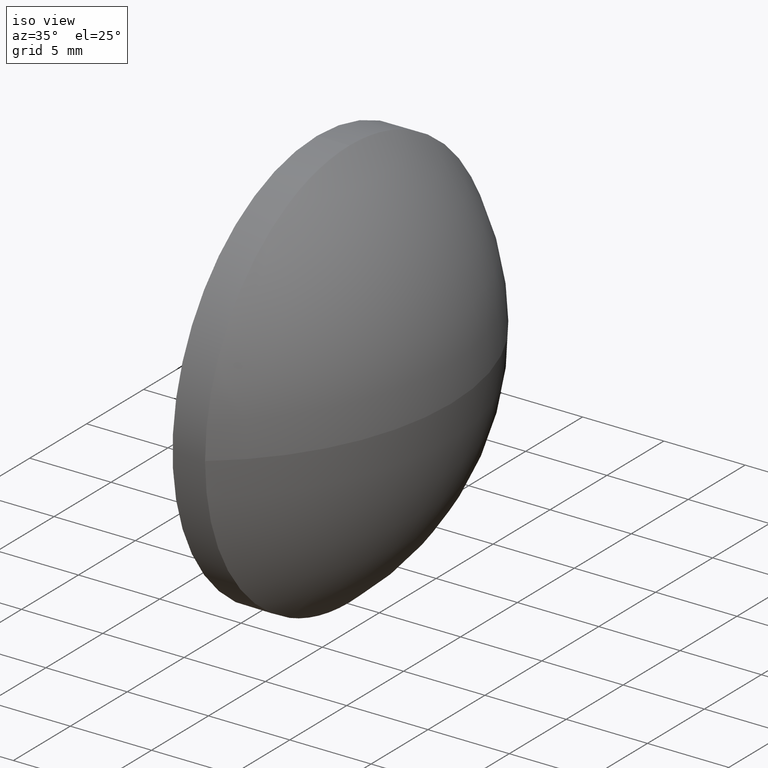
[diagram: clean part render]
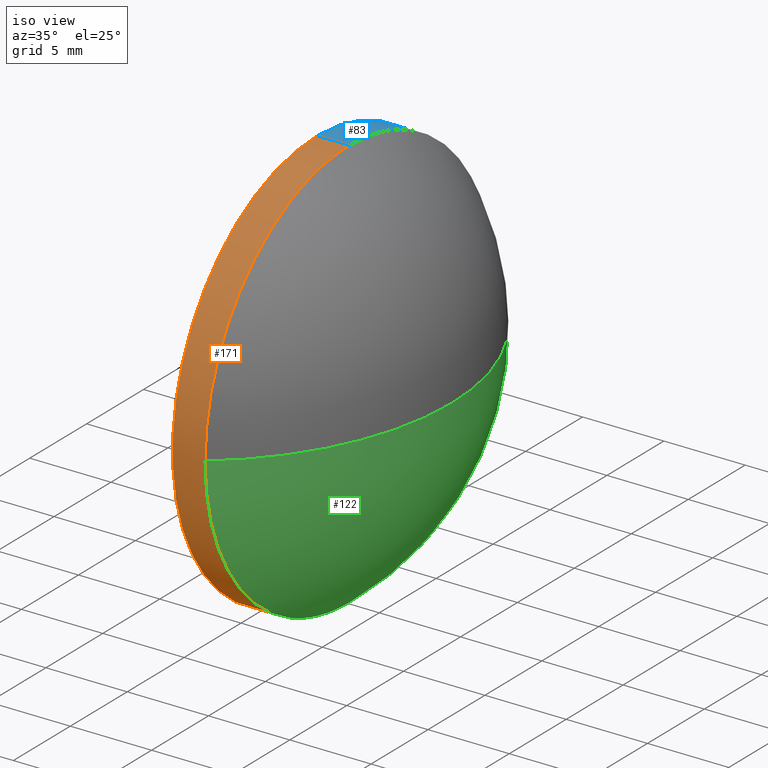
[diagram: same view with three faces highlighted in distinct colors, each labeled with its STEP entity id]
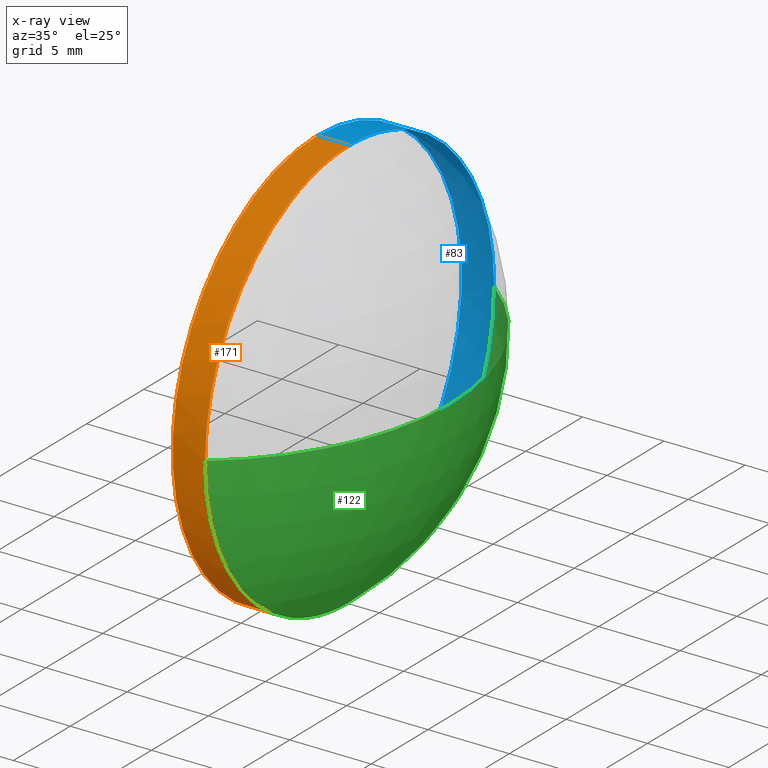
[diagram: x-ray of the same camera — body ghosted, the three highlighted faces saturated]
A machine part, iso view with three faces highlighted in distinct colors.
The next image is the same camera in x-ray (body ghosted, the three faces saturated) — at least one of them is partly hidden behind the body in this view.
Their STEP definitions:

[orange] entity #171 — the highlighted cylindrical surface (partial cylindrical patch) has radius 12.7 mm, axis along (-1, -0, -0).
#5 = CARTESIAN_POINT ( 'NONE',  ( 528.7403345451293700, 109.1985540701067800, 0.0000000000000000000 ) ) ;
#7 = CARTESIAN_POINT ( 'NONE',  ( 526.7403345451293700, 109.1985540701067800, -12.70000000000000300 ) ) ;
#10 = EDGE_CURVE ( 'NONE', #137, #184, #133, .T. ) ;
#11 = DIRECTION ( 'NONE',  ( 0.0000000000000000000, 0.0000000000000000000, 1.000000000000000000 ) ) ;
#23 = CARTESIAN_POINT ( 'NONE',  ( 521.0356609976745400, 109.1985540701067800, -12.70000000000000300 ) ) ;
#34 = AXIS2_PLACEMENT_3D ( 'NONE', #5, #55, #151 ) ;
#35 = CARTESIAN_POINT ( 'NONE',  ( 528.7403345451293700, 96.49855407010676300, -1.555301434917136700E-015 ) ) ;
#40 = ORIENTED_EDGE ( 'NONE', *, *, #146, .F. ) ;
#41 = CYLINDRICAL_SURFACE ( 'NONE', #100, 12.70000000000000300 ) ;
#44 = CARTESIAN_POINT ( 'NONE',  ( 528.7403345451293700, 109.1985540701067800, -12.70000000000000300 ) ) ;
#55 = DIRECTION ( 'NONE',  ( -1.000000000000000000, -0.0000000000000000000, -0.0000000000000000000 ) ) ;
#56 = EDGE_CURVE ( 'NONE', #117, #159, #72, .T. ) ;
#57 = ORIENTED_EDGE ( 'NONE', *, *, #10, .T. ) ;
#59 = AXIS2_PLACEMENT_3D ( 'NONE', #180, #154, #181 ) ;
#63 = CARTESIAN_POINT ( 'NONE',  ( 521.0356609976745400, 109.1985540701067800, 12.70000000000000300 ) ) ;
#68 = DIRECTION ( 'NONE',  ( -1.000000000000000000, -0.0000000000000000000, -0.0000000000000000000 ) ) ;
#72 = CIRCLE ( 'NONE', #176, 12.70000000000000300 ) ;
#76 = DIRECTION ( 'NONE',  ( 0.0000000000000000000, 0.0000000000000000000, 1.000000000000000000 ) ) ;
#84 = VECTOR ( 'NONE', #68, 1000.000000000000000 ) ;
#92 = CARTESIAN_POINT ( 'NONE',  ( 526.7403345451293700, 109.1985540701067800, 12.70000000000000300 ) ) ;
#94 = CARTESIAN_POINT ( 'NONE',  ( 521.0356609976745400, 109.1985540701067800, 0.0000000000000000000 ) ) ;
#100 = AXIS2_PLACEMENT_3D ( 'NONE', #94, #165, #11 ) ;
#103 = EDGE_CURVE ( 'NONE', #159, #137, #144, .T. ) ;
#104 = VERTEX_POINT ( 'NONE', #7 ) ;
#105 = DIRECTION ( 'NONE',  ( -1.000000000000000000, -0.0000000000000000000, -0.0000000000000000000 ) ) ;
#111 = ORIENTED_EDGE ( 'NONE', *, *, #56, .T. ) ;
#113 = LINE ( 'NONE', #23, #84 ) ;
#116 = DIRECTION ( 'NONE',  ( -1.000000000000000000, -0.0000000000000000000, -0.0000000000000000000 ) ) ;
#117 = VERTEX_POINT ( 'NONE', #44 ) ;
#124 = EDGE_CURVE ( 'NONE', #117, #104, #113, .T. ) ;
#125 = ORIENTED_EDGE ( 'NONE', *, *, #103, .T. ) ;
#130 = ORIENTED_EDGE ( 'NONE', *, *, #124, .F. ) ;
#133 = LINE ( 'NONE', #63, #185 ) ;
#136 = CARTESIAN_POINT ( 'NONE',  ( 528.7403345451293700, 109.1985540701067800, 0.0000000000000000000 ) ) ;
#137 = VERTEX_POINT ( 'NONE', #169 ) ;
#144 = CIRCLE ( 'NONE', #34, 12.70000000000000300 ) ;
#145 = EDGE_LOOP ( 'NONE', ( #130, #111, #125, #57, #40 ) ) ;
#146 = EDGE_CURVE ( 'NONE', #104, #184, #149, .T. ) ;
#147 = FACE_OUTER_BOUND ( 'NONE', #145, .T. ) ;
#149 = CIRCLE ( 'NONE', #59, 12.70000000000000300 ) ;
#151 = DIRECTION ( 'NONE',  ( 0.0000000000000000000, 0.0000000000000000000, 1.000000000000000000 ) ) ;
#154 = DIRECTION ( 'NONE',  ( -1.000000000000000000, -0.0000000000000000000, -0.0000000000000000000 ) ) ;
#159 = VERTEX_POINT ( 'NONE', #35 ) ;
#165 = DIRECTION ( 'NONE',  ( -1.000000000000000000, -0.0000000000000000000, -0.0000000000000000000 ) ) ;
#169 = CARTESIAN_POINT ( 'NONE',  ( 528.7403345451293700, 109.1985540701067800, 12.70000000000000300 ) ) ;
#171 = ADVANCED_FACE ( 'NONE', ( #147 ), #41, .T. ) ;
#176 = AXIS2_PLACEMENT_3D ( 'NONE', #136, #116, #76 ) ;
#180 = CARTESIAN_POINT ( 'NONE',  ( 526.7403345451293700, 109.1985540701067800, 0.0000000000000000000 ) ) ;
#181 = DIRECTION ( 'NONE',  ( 0.0000000000000000000, 0.0000000000000000000, 1.000000000000000000 ) ) ;
#184 = VERTEX_POINT ( 'NONE', #92 ) ;
#185 = VECTOR ( 'NONE', #105, 1000.000000000000000 ) ;

[blue] entity #83 — the highlighted cylindrical surface (partial cylindrical patch) has radius 12.7 mm, axis along (-1, -0, -0).
#4 = DIRECTION ( 'NONE',  ( 0.0000000000000000000, 0.0000000000000000000, 1.000000000000000000 ) ) ;
#6 = CARTESIAN_POINT ( 'NONE',  ( 526.7403345451293700, 109.1985540701067800, 0.0000000000000000000 ) ) ;
#7 = CARTESIAN_POINT ( 'NONE',  ( 526.7403345451293700, 109.1985540701067800, -12.70000000000000300 ) ) ;
#10 = EDGE_CURVE ( 'NONE', #137, #184, #133, .T. ) ;
#18 = DIRECTION ( 'NONE',  ( -1.000000000000000000, -0.0000000000000000000, -0.0000000000000000000 ) ) ;
#23 = CARTESIAN_POINT ( 'NONE',  ( 521.0356609976745400, 109.1985540701067800, -12.70000000000000300 ) ) ;
#25 = AXIS2_PLACEMENT_3D ( 'NONE', #78, #134, #4 ) ;
#27 = ORIENTED_EDGE ( 'NONE', *, *, #135, .T. ) ;
#29 = DIRECTION ( 'NONE',  ( 0.0000000000000000000, 0.0000000000000000000, 1.000000000000000000 ) ) ;
#30 = AXIS2_PLACEMENT_3D ( 'NONE', #110, #82, #33 ) ;
#33 = DIRECTION ( 'NONE',  ( 0.0000000000000000000, 0.0000000000000000000, 1.000000000000000000 ) ) ;
#39 = EDGE_CURVE ( 'NONE', #184, #104, #161, .T. ) ;
#44 = CARTESIAN_POINT ( 'NONE',  ( 528.7403345451293700, 109.1985540701067800, -12.70000000000000300 ) ) ;
#46 = DIRECTION ( 'NONE',  ( 0.0000000000000000000, 0.0000000000000000000, 1.000000000000000000 ) ) ;
#47 = CARTESIAN_POINT ( 'NONE',  ( 521.0356609976745400, 109.1985540701067800, 0.0000000000000000000 ) ) ;
#48 = CARTESIAN_POINT ( 'NONE',  ( 528.7403345451293700, 121.8985540701067700, 0.0000000000000000000 ) ) ;
#61 = DIRECTION ( 'NONE',  ( -1.000000000000000000, -0.0000000000000000000, -0.0000000000000000000 ) ) ;
#63 = CARTESIAN_POINT ( 'NONE',  ( 521.0356609976745400, 109.1985540701067800, 12.70000000000000300 ) ) ;
#68 = DIRECTION ( 'NONE',  ( -1.000000000000000000, -0.0000000000000000000, -0.0000000000000000000 ) ) ;
#74 = CIRCLE ( 'NONE', #30, 12.70000000000000300 ) ;
#75 = EDGE_CURVE ( 'NONE', #97, #117, #88, .T. ) ;
#78 = CARTESIAN_POINT ( 'NONE',  ( 528.7403345451293700, 109.1985540701067800, 0.0000000000000000000 ) ) ;
#82 = DIRECTION ( 'NONE',  ( -1.000000000000000000, -0.0000000000000000000, -0.0000000000000000000 ) ) ;
#83 = ADVANCED_FACE ( 'NONE', ( #178 ), #152, .T. ) ;
#84 = VECTOR ( 'NONE', #68, 1000.000000000000000 ) ;
#86 = ORIENTED_EDGE ( 'NONE', *, *, #124, .T. ) ;
#88 = CIRCLE ( 'NONE', #25, 12.70000000000000300 ) ;
#92 = CARTESIAN_POINT ( 'NONE',  ( 526.7403345451293700, 109.1985540701067800, 12.70000000000000300 ) ) ;
#97 = VERTEX_POINT ( 'NONE', #48 ) ;
#104 = VERTEX_POINT ( 'NONE', #7 ) ;
#105 = DIRECTION ( 'NONE',  ( -1.000000000000000000, -0.0000000000000000000, -0.0000000000000000000 ) ) ;
#110 = CARTESIAN_POINT ( 'NONE',  ( 528.7403345451293700, 109.1985540701067800, 0.0000000000000000000 ) ) ;
#113 = LINE ( 'NONE', #23, #84 ) ;
#117 = VERTEX_POINT ( 'NONE', #44 ) ;
#118 = AXIS2_PLACEMENT_3D ( 'NONE', #47, #18, #46 ) ;
#124 = EDGE_CURVE ( 'NONE', #117, #104, #113, .T. ) ;
#128 = EDGE_LOOP ( 'NONE', ( #168, #86, #157, #143, #27 ) ) ;
#133 = LINE ( 'NONE', #63, #185 ) ;
#134 = DIRECTION ( 'NONE',  ( -1.000000000000000000, -0.0000000000000000000, -0.0000000000000000000 ) ) ;
#135 = EDGE_CURVE ( 'NONE', #137, #97, #74, .T. ) ;
#137 = VERTEX_POINT ( 'NONE', #169 ) ;
#143 = ORIENTED_EDGE ( 'NONE', *, *, #10, .F. ) ;
#152 = CYLINDRICAL_SURFACE ( 'NONE', #118, 12.70000000000000300 ) ;
#155 = AXIS2_PLACEMENT_3D ( 'NONE', #6, #61, #29 ) ;
#157 = ORIENTED_EDGE ( 'NONE', *, *, #39, .F. ) ;
#161 = CIRCLE ( 'NONE', #155, 12.70000000000000300 ) ;
#168 = ORIENTED_EDGE ( 'NONE', *, *, #75, .T. ) ;
#169 = CARTESIAN_POINT ( 'NONE',  ( 528.7403345451293700, 109.1985540701067800, 12.70000000000000300 ) ) ;
#178 = FACE_OUTER_BOUND ( 'NONE', #128, .T. ) ;
#184 = VERTEX_POINT ( 'NONE', #92 ) ;
#185 = VECTOR ( 'NONE', #105, 1000.000000000000000 ) ;

[green] entity #122 — the highlighted spherical surface has radius 16.0596 mm.
#2 = CIRCLE ( 'NONE', #15, 16.05962279293740700 ) ;
#4 = DIRECTION ( 'NONE',  ( 0.0000000000000000000, 0.0000000000000000000, 1.000000000000000000 ) ) ;
#12 = FACE_OUTER_BOUND ( 'NONE', #177, .T. ) ;
#15 = AXIS2_PLACEMENT_3D ( 'NONE', #31, #179, #163 ) ;
#21 = CARTESIAN_POINT ( 'NONE',  ( 518.9107117521919000, 109.1985540701067500, 0.0000000000000000000 ) ) ;
#25 = AXIS2_PLACEMENT_3D ( 'NONE', #78, #134, #4 ) ;
#26 = VERTEX_POINT ( 'NONE', #138 ) ;
#31 = CARTESIAN_POINT ( 'NONE',  ( 518.9107117521919000, 109.1985540701067500, 0.0000000000000000000 ) ) ;
#35 = CARTESIAN_POINT ( 'NONE',  ( 528.7403345451293700, 96.49855407010676300, -1.555301434917136700E-015 ) ) ;
#44 = CARTESIAN_POINT ( 'NONE',  ( 528.7403345451293700, 109.1985540701067800, -12.70000000000000300 ) ) ;
#45 = ORIENTED_EDGE ( 'NONE', *, *, #75, .F. ) ;
#48 = CARTESIAN_POINT ( 'NONE',  ( 528.7403345451293700, 121.8985540701067700, 0.0000000000000000000 ) ) ;
#56 = EDGE_CURVE ( 'NONE', #117, #159, #72, .T. ) ;
#58 = ORIENTED_EDGE ( 'NONE', *, *, #186, .F. ) ;
#62 = EDGE_CURVE ( 'NONE', #26, #159, #2, .T. ) ;
#66 = DIRECTION ( 'NONE',  ( -0.0000000000000000000, 0.0000000000000000000, -1.000000000000000000 ) ) ;
#69 = CARTESIAN_POINT ( 'NONE',  ( 518.9107117521919000, 109.1985540701067500, 0.0000000000000000000 ) ) ;
#72 = CIRCLE ( 'NONE', #176, 12.70000000000000300 ) ;
#73 = CIRCLE ( 'NONE', #172, 16.05962279293737900 ) ;
#75 = EDGE_CURVE ( 'NONE', #97, #117, #88, .T. ) ;
#76 = DIRECTION ( 'NONE',  ( 0.0000000000000000000, 0.0000000000000000000, 1.000000000000000000 ) ) ;
#78 = CARTESIAN_POINT ( 'NONE',  ( 528.7403345451293700, 109.1985540701067800, 0.0000000000000000000 ) ) ;
#79 = SPHERICAL_SURFACE ( 'NONE', #115, 16.05962279293740700 ) ;
#88 = CIRCLE ( 'NONE', #25, 12.70000000000000300 ) ;
#97 = VERTEX_POINT ( 'NONE', #48 ) ;
#109 = DIRECTION ( 'NONE',  ( 1.000000000000000000, 0.0000000000000000000, 0.0000000000000000000 ) ) ;
#114 = ORIENTED_EDGE ( 'NONE', *, *, #62, .T. ) ;
#115 = AXIS2_PLACEMENT_3D ( 'NONE', #21, #66, #164 ) ;
#116 = DIRECTION ( 'NONE',  ( -1.000000000000000000, -0.0000000000000000000, -0.0000000000000000000 ) ) ;
#117 = VERTEX_POINT ( 'NONE', #44 ) ;
#122 = ADVANCED_FACE ( 'NONE', ( #12 ), #79, .T. ) ;
#134 = DIRECTION ( 'NONE',  ( -1.000000000000000000, -0.0000000000000000000, -0.0000000000000000000 ) ) ;
#136 = CARTESIAN_POINT ( 'NONE',  ( 528.7403345451293700, 109.1985540701067800, 0.0000000000000000000 ) ) ;
#138 = CARTESIAN_POINT ( 'NONE',  ( 534.9703345451292800, 109.1985540701067500, 0.0000000000000000000 ) ) ;
#159 = VERTEX_POINT ( 'NONE', #35 ) ;
#163 = DIRECTION ( 'NONE',  ( 0.0000000000000000000, 1.000000000000000000, 1.224646799147353200E-016 ) ) ;
#164 = DIRECTION ( 'NONE',  ( 0.0000000000000000000, 1.000000000000000000, 0.0000000000000000000 ) ) ;
#167 = DIRECTION ( 'NONE',  ( -0.0000000000000000000, 0.0000000000000000000, 1.000000000000000000 ) ) ;
#172 = AXIS2_PLACEMENT_3D ( 'NONE', #69, #167, #109 ) ;
#175 = ORIENTED_EDGE ( 'NONE', *, *, #56, .F. ) ;
#176 = AXIS2_PLACEMENT_3D ( 'NONE', #136, #116, #76 ) ;
#177 = EDGE_LOOP ( 'NONE', ( #58, #114, #175, #45 ) ) ;
#179 = DIRECTION ( 'NONE',  ( 0.0000000000000000000, 1.224646799147353200E-016, -1.000000000000000000 ) ) ;
#186 = EDGE_CURVE ( 'NONE', #26, #97, #73, .T. ) ;